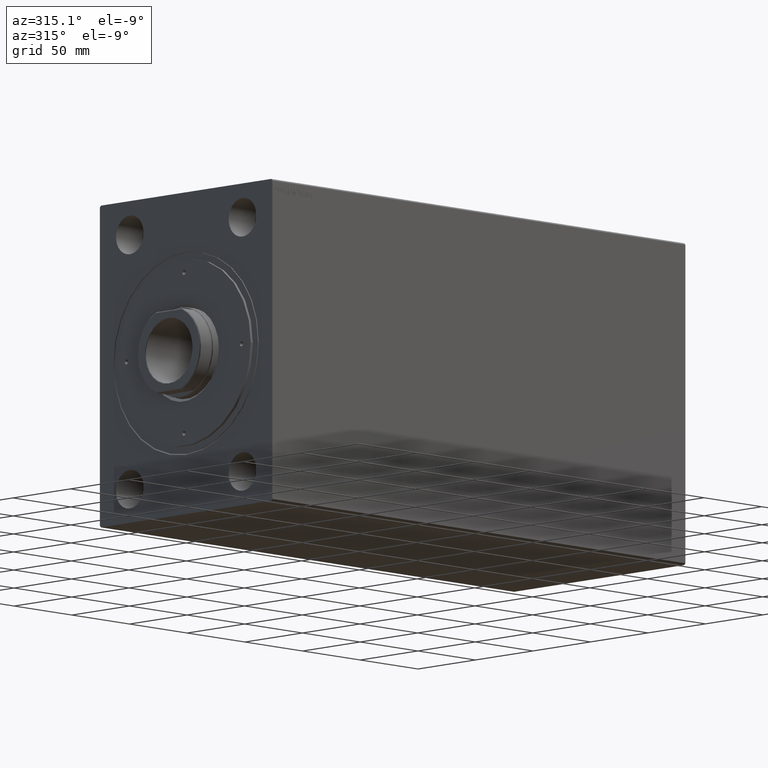
[diagram: clean part render]
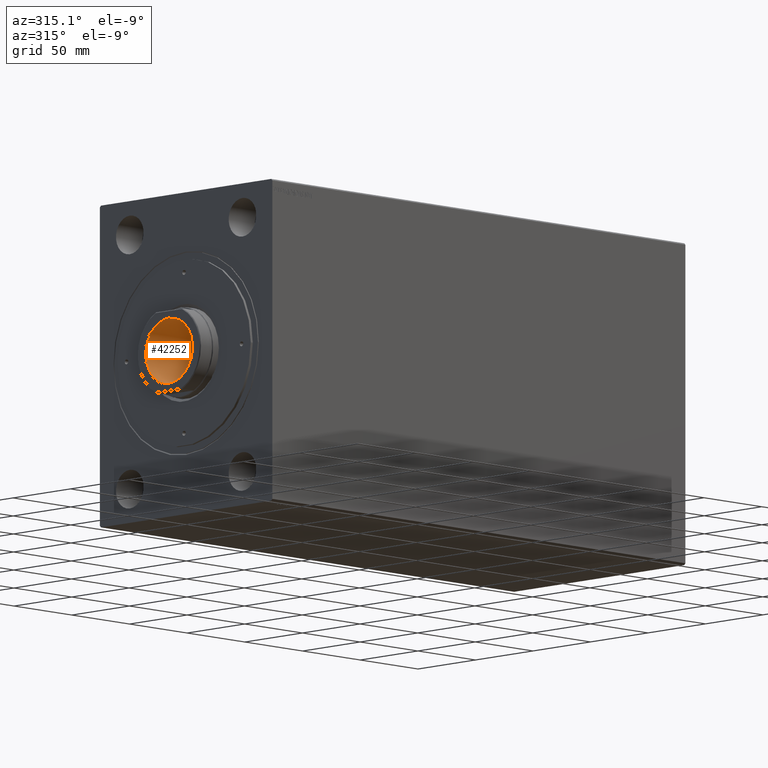
[diagram: same view with one face highlighted and labeled with its STEP entity id]
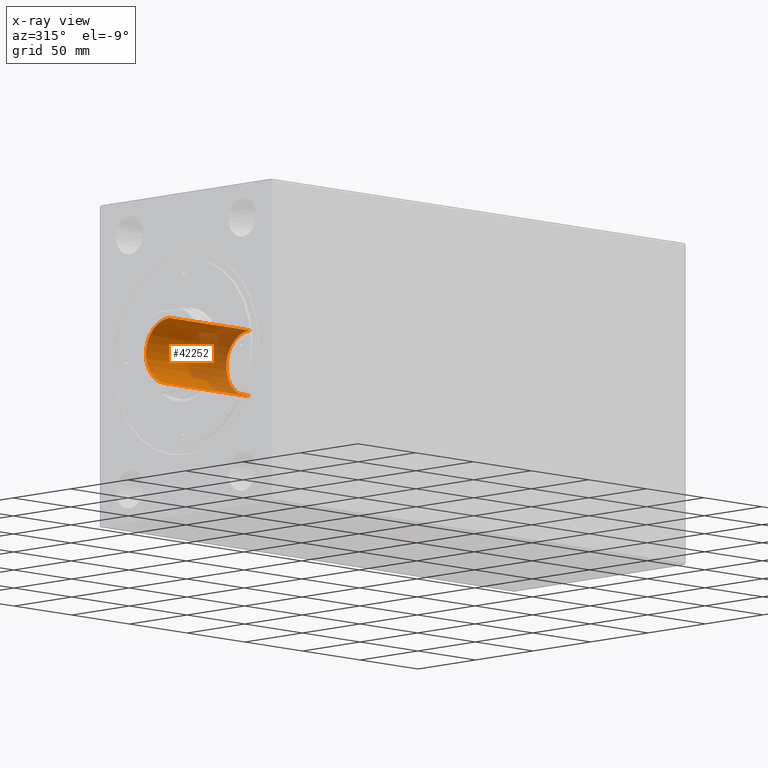
[diagram: x-ray of the same camera — body ghosted, the highlighted face saturated]
A machine part, auxiliary view. The second image highlights one B-rep face of the part: STEP entity #42252.
The next image is the same camera in x-ray: the body ghosted, the highlighted face saturated — about 41% of this face is hidden behind the body in this view.
In plain terms, the highlighted cylindrical surface (edge-blend (fillet) strip) has radius 20.25 mm, axis along (-1, 0, 0).
Its self-contained STEP definition (entity closure, byte-faithful):
#2930 = LINE ( 'NONE', #16501, #7489 ) ;
#4087 = DIRECTION ( 'NONE',  ( 1.000000000000000000, 0.000000000000000000, 0.000000000000000000 ) ) ;
#4094 = CARTESIAN_POINT ( 'NONE',  ( 20.24999999999998934, 0.000000000000000000, 339.6999999999999886 ) ) ;
#7197 = CARTESIAN_POINT ( 'NONE',  ( 0.000000000000000000, 0.000000000000000000, 339.6999999999999886 ) ) ;
#7226 = AXIS2_PLACEMENT_3D ( 'NONE', #7197, #17870, #4087 ) ;
#7489 = VECTOR ( 'NONE', #40293, 1000.000000000000000 ) ;
#8279 = EDGE_CURVE ( 'NONE', #15199, #24726, #43508, .T. ) ;
#9307 = DIRECTION ( 'NONE',  ( 1.000000000000000000, 0.000000000000000000, 0.000000000000000000 ) ) ;
#10580 = ORIENTED_EDGE ( 'NONE', *, *, #8279, .F. ) ;
#11775 = CARTESIAN_POINT ( 'NONE',  ( 20.24999999999998224, 0.000000000000000000, 269.6999999999999886 ) ) ;
#15151 = EDGE_CURVE ( 'NONE', #22275, #21146, #21660, .T. ) ;
#15199 = VERTEX_POINT ( 'NONE', #11775 ) ;
#15758 = CARTESIAN_POINT ( 'NONE',  ( 0.000000000000000000, 0.000000000000000000, 339.3999999999999773 ) ) ;
#16501 = CARTESIAN_POINT ( 'NONE',  ( -20.24999999999998934, 2.479909768273389117E-15, 339.6999999999999886 ) ) ;
#17870 = DIRECTION ( 'NONE',  ( -0.000000000000000000, -0.000000000000000000, 1.000000000000000000 ) ) ;
#18101 = AXIS2_PLACEMENT_3D ( 'NONE', #15758, #36002, #9307 ) ;
#19071 = ORIENTED_EDGE ( 'NONE', *, *, #20401, .F. ) ;
#20401 = EDGE_CURVE ( 'NONE', #24726, #21146, #2930, .T. ) ;
#21146 = VERTEX_POINT ( 'NONE', #32529 ) ;
#21216 = DIRECTION ( 'NONE',  ( 1.000000000000000000, 0.000000000000000000, 0.000000000000000000 ) ) ;
#21660 = CIRCLE ( 'NONE', #18101, 20.24999999999998934 ) ;
#22275 = VERTEX_POINT ( 'NONE', #43497 ) ;
#24726 = VERTEX_POINT ( 'NONE', #30713 ) ;
#25083 = VECTOR ( 'NONE', #37669, 1000.000000000000000 ) ;
#27052 = ORIENTED_EDGE ( 'NONE', *, *, #34102, .T. ) ;
#27403 = ORIENTED_EDGE ( 'NONE', *, *, #15151, .T. ) ;
#28540 = DIRECTION ( 'NONE',  ( -0.000000000000000000, -0.000000000000000000, 1.000000000000000000 ) ) ;
#30537 = FACE_OUTER_BOUND ( 'NONE', #42323, .T. ) ;
#30713 = CARTESIAN_POINT ( 'NONE',  ( -20.24999999999998224, 2.479909768273388328E-15, 269.6999999999999886 ) ) ;
#32529 = CARTESIAN_POINT ( 'NONE',  ( -20.24999999999998934, 2.479909768273389117E-15, 339.3999999999999773 ) ) ;
#32821 = AXIS2_PLACEMENT_3D ( 'NONE', #41897, #28540, #21216 ) ;
#34102 = EDGE_CURVE ( 'NONE', #15199, #22275, #41450, .T. ) ;
#36002 = DIRECTION ( 'NONE',  ( 0.000000000000000000, 0.000000000000000000, 1.000000000000000000 ) ) ;
#37661 = CYLINDRICAL_SURFACE ( 'NONE', #7226, 20.24999999999998934 ) ;
#37669 = DIRECTION ( 'NONE',  ( -0.000000000000000000, -0.000000000000000000, 1.000000000000000000 ) ) ;
#40293 = DIRECTION ( 'NONE',  ( -0.000000000000000000, -0.000000000000000000, 1.000000000000000000 ) ) ;
#41450 = LINE ( 'NONE', #4094, #25083 ) ;
#41897 = CARTESIAN_POINT ( 'NONE',  ( 0.000000000000000000, 0.000000000000000000, 269.6999999999999886 ) ) ;
#42252 = ADVANCED_FACE ( 'NONE', ( #30537 ), #37661, .F. ) ;
#42323 = EDGE_LOOP ( 'NONE', ( #19071, #10580, #27052, #27403 ) ) ;
#43497 = CARTESIAN_POINT ( 'NONE',  ( 20.24999999999998934, 0.000000000000000000, 339.3999999999999773 ) ) ;
#43508 = CIRCLE ( 'NONE', #32821, 20.24999999999998224 ) ;